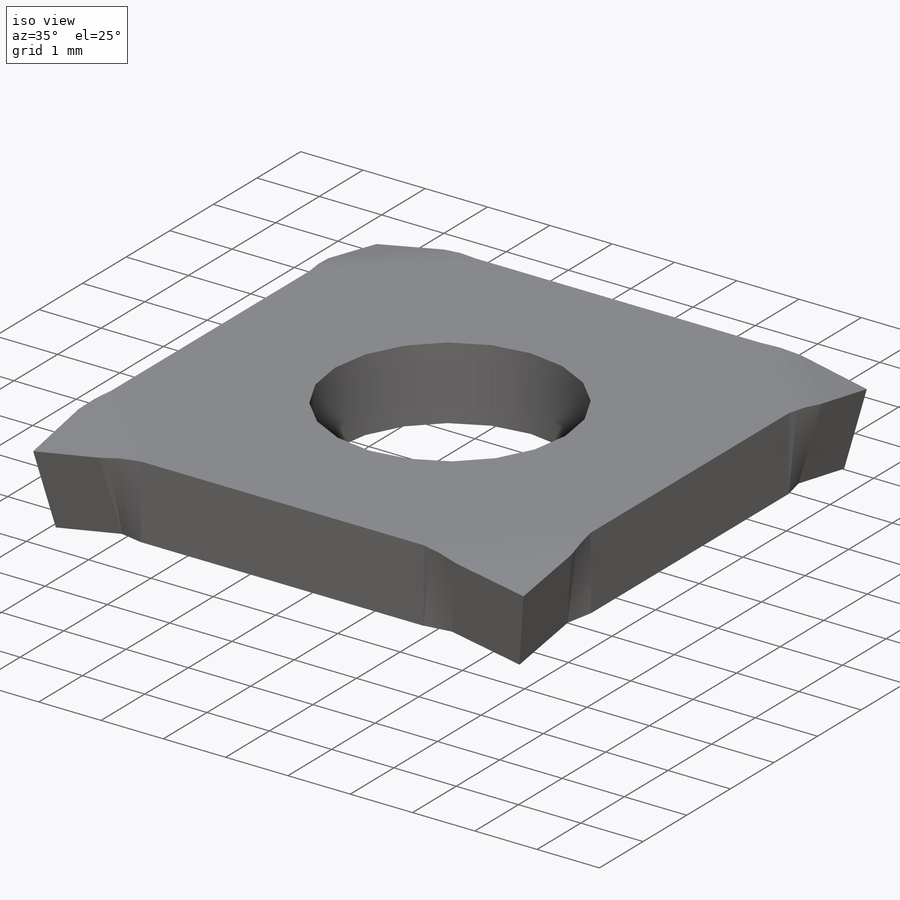
[diagram: iso view]
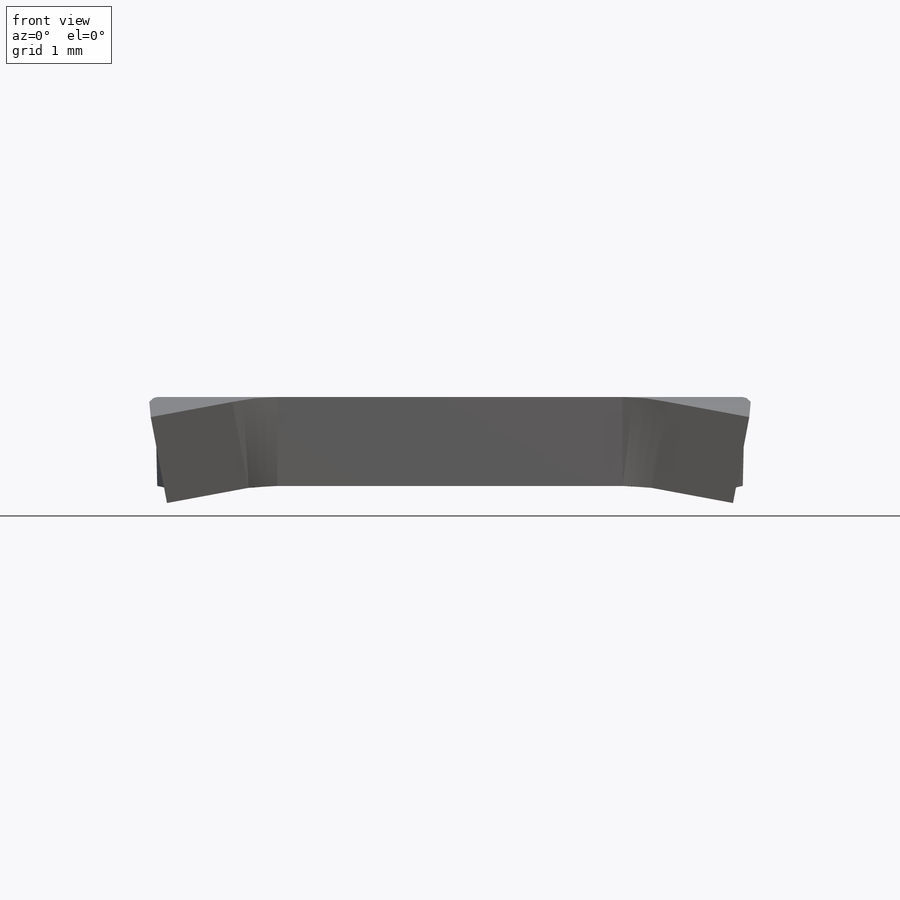
[diagram: front view]
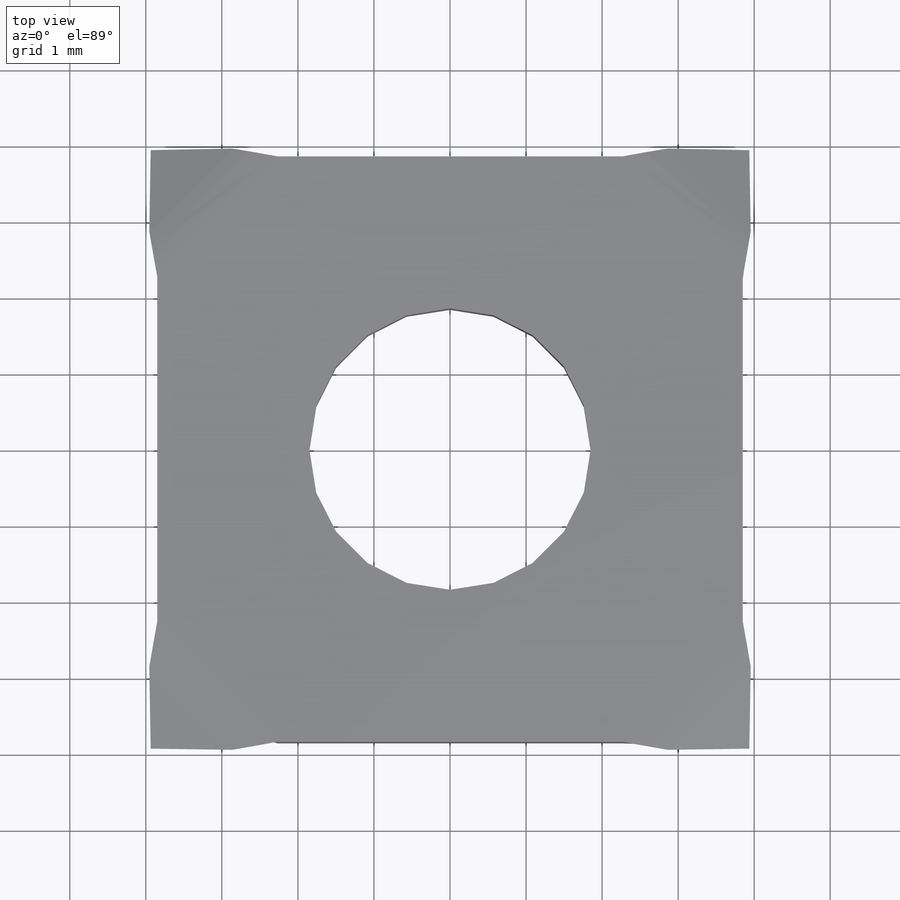
[diagram: top view]
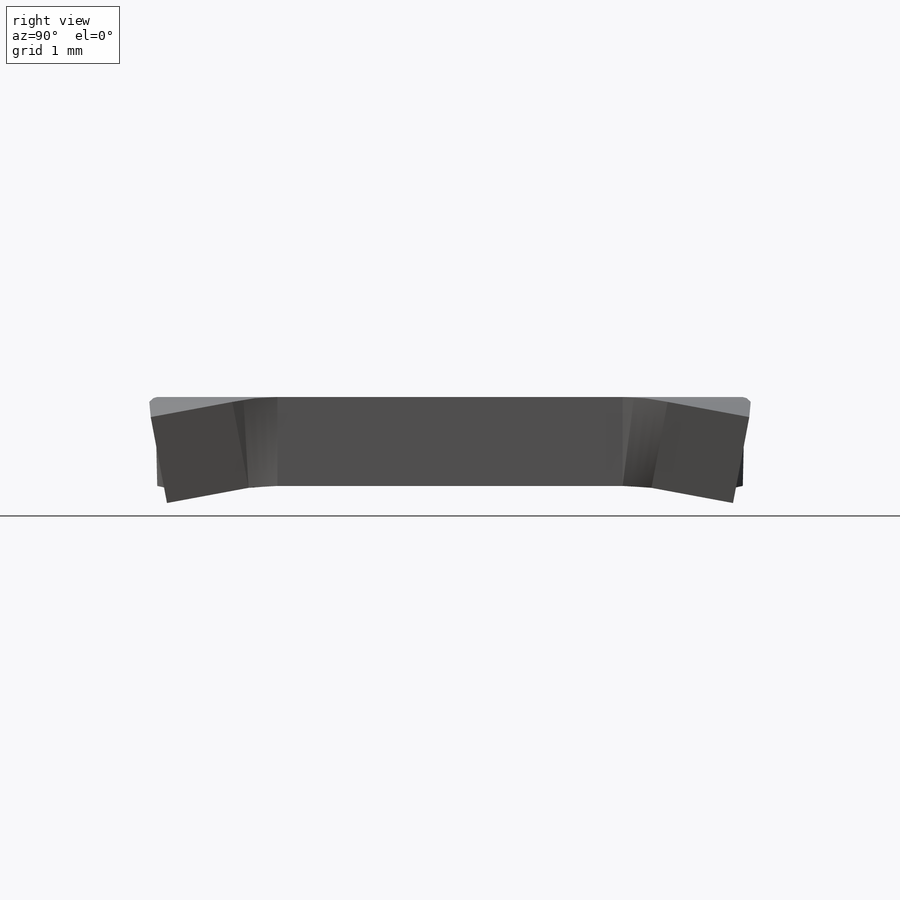
[diagram: right view]
SOLIDWORKS PART (.sldprt)
format: sldprt  version: not decoded by parser v0  size: 313,856 bytes
history: native  units: mm
features: sketch x10, sheet_metal_op x3, hole x2, material x1 + 11 further entries (+13 scaffold rows collapsed; 1 parser-record rows omitted)
feature tree (41):
  scaffold x13  (default folders/planes/origin — collapsed)
  material  "Alloy Steel"
  sketch  "Sketch1"  dims[c1.D1=7.7mm c2.D1=0.7366mm c2.D2=0.5 c2.D3=0.0mm c2.D6=500.0mm]
  sheet_metal_op  "Base-Flange1"
  sketch  "Sketch12"  dims[c1.D1=~4.086768mm c2.D1=45.0deg c2.D2=4.5mm]
  parser-record x1  (decoder bookkeeping rows leaked as tree rows — omitted from the tree; the rows remain in map.json)
  "SketchBend2"
  "SketchBend3"
  "SketchBend4"
  hole  "M3.5 Clearance Hole1"  Diameter=3.7mm Depth=2.77mm
  sketch  "Sketch14"
  sketch  "Sketch13"  dims[hole-wizard template sketch: 46 standard entries collapsed; hole parameters kept: c15.Hole Dia.=3.7mm c15.Hole Depth=2.77mm c15.D3=~14.816244mm c15.Drill Angle=118.0deg]
  sketch  "Bend-Lines1"
  sketch  "Bounding-Box1"
  sheet_metal_op  "Sheet-Metal23"
  "Flat-Pattern23"
  sketch  "Bend-Lines2"
  sketch  "Bounding-Box2"
  "Flatten-<SketchBend2>1"
  "Flatten-<SketchBend3>1"
  "Flatten-<SketchBend4>1"
  hole  "Sheet-Metal24"  Diameter=0.7366mm
  sheet_metal_op  "Flat-Pattern23"
  sketch  "Bend-Lines2"
  sketch  "Bounding-Box2"
  "Flatten-<SketchBend1>1"
  "Flatten-<SketchBend2>1"
  "Flatten-<SketchBend3>1"
  "Flatten-<SketchBend4>1"
decode coverage: 5 of 15 modeling features carry decoded parameters; 11 rows unclassified (native names shown)
note: ~ marks probable driven/reference dimensions
note: suppression state not decoded; provenance and decode notes live in map.json
